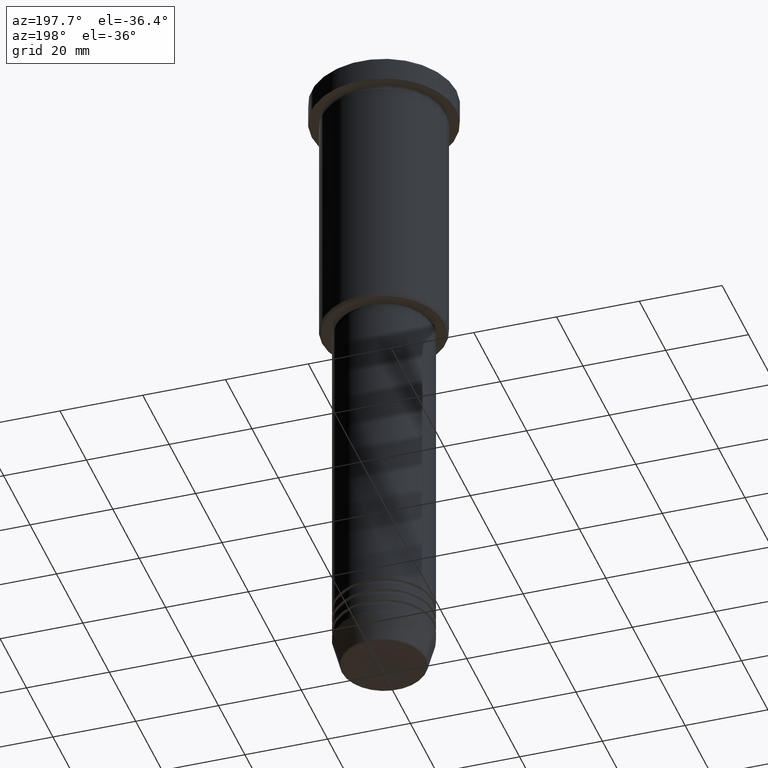
[diagram: clean part render]
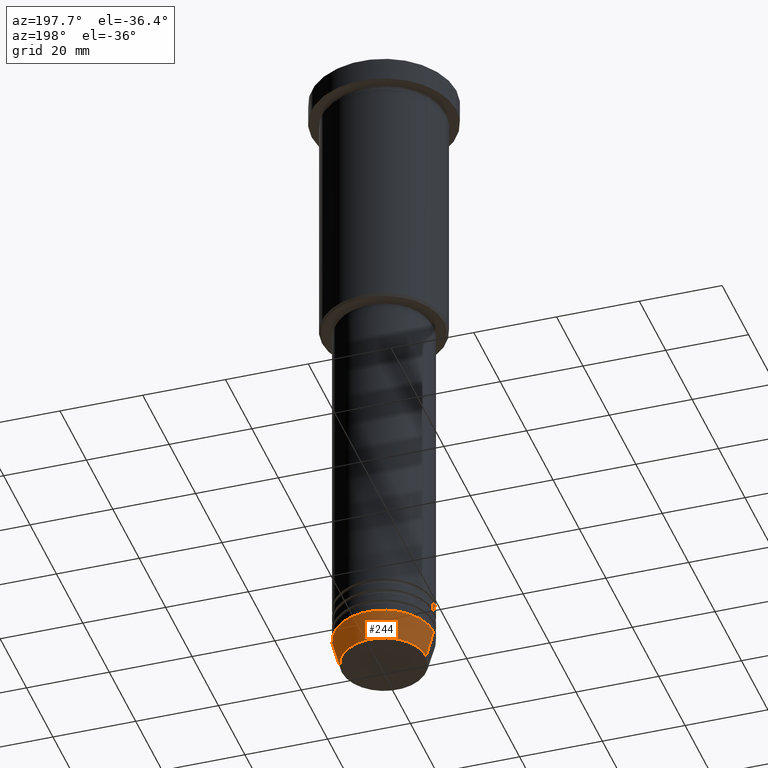
[diagram: same view with one face highlighted and labeled with its STEP entity id]
A machine part, auxiliary view. The second image highlights one B-rep face of the part: STEP entity #244.
In plain terms, the highlighted conical surface has half-angle 15 deg.
Its self-contained STEP definition (entity closure, byte-faithful):
#6 = AXIS2_PLACEMENT_3D ( 'NONE', #682, #656, #220 ) ;
#22 = DIRECTION ( 'NONE',  ( 1.000000000000000000, 0.000000000000000000, 0.000000000000000000 ) ) ;
#60 = AXIS2_PLACEMENT_3D ( 'NONE', #166, #267, #447 ) ;
#102 = AXIS2_PLACEMENT_3D ( 'NONE', #396, #562, #22 ) ;
#132 = VERTEX_POINT ( 'NONE', #814 ) ;
#166 = CARTESIAN_POINT ( 'NONE',  ( 0.000000000000000000, 0.000000000000000000, -154.0000000000000000 ) ) ;
#220 = DIRECTION ( 'NONE',  ( 1.000000000000000000, 0.000000000000000000, 0.000000000000000000 ) ) ;
#244 = ADVANCED_FACE ( 'NONE', ( #307 ), #486, .T. ) ;
#267 = DIRECTION ( 'NONE',  ( -0.000000000000000000, -0.000000000000000000, 1.000000000000000000 ) ) ;
#298 = ORIENTED_EDGE ( 'NONE', *, *, #528, .F. ) ;
#307 = FACE_OUTER_BOUND ( 'NONE', #990, .T. ) ;
#387 = LINE ( 'NONE', #1123, #871 ) ;
#396 = CARTESIAN_POINT ( 'NONE',  ( 0.000000000000000000, 0.000000000000000000, -160.6294095225512422 ) ) ;
#405 = ORIENTED_EDGE ( 'NONE', *, *, #585, .T. ) ;
#447 = DIRECTION ( 'NONE',  ( 1.000000000000000000, 0.000000000000000000, 0.000000000000000000 ) ) ;
#472 = CIRCLE ( 'NONE', #102, 10.22365507213719660 ) ;
#486 = CONICAL_SURFACE ( 'NONE', #6, 12.00000000000000000, 0.2617993877991500740 ) ;
#514 = VERTEX_POINT ( 'NONE', #550 ) ;
#528 = EDGE_CURVE ( 'NONE', #1072, #1158, #1100, .T. ) ;
#550 = CARTESIAN_POINT ( 'NONE',  ( -10.22365507213719837, 1.360806402472383336E-15, -160.6294095225512422 ) ) ;
#562 = DIRECTION ( 'NONE',  ( -0.000000000000000000, -0.000000000000000000, 1.000000000000000000 ) ) ;
#585 = EDGE_CURVE ( 'NONE', #514, #1158, #1128, .T. ) ;
#601 = ORIENTED_EDGE ( 'NONE', *, *, #653, .T. ) ;
#645 = CARTESIAN_POINT ( 'NONE',  ( -12.00000000000000000, 1.469576158976823947E-15, -154.0000000000000000 ) ) ;
#653 = EDGE_CURVE ( 'NONE', #132, #514, #472, .T. ) ;
#656 = DIRECTION ( 'NONE',  ( -0.000000000000000000, -0.000000000000000000, 1.000000000000000000 ) ) ;
#665 = CARTESIAN_POINT ( 'NONE',  ( 12.00000000000000000, 0.000000000000000000, -154.0000000000000000 ) ) ;
#671 = DIRECTION ( 'NONE',  ( -0.2588190451025213501, 3.169619151431772337E-17, 0.9659258262890680902 ) ) ;
#678 = DIRECTION ( 'NONE',  ( 0.2588190451025213501, 0.000000000000000000, 0.9659258262890680902 ) ) ;
#682 = CARTESIAN_POINT ( 'NONE',  ( 0.000000000000000000, 0.000000000000000000, -154.0000000000000000 ) ) ;
#696 = EDGE_CURVE ( 'NONE', #132, #1072, #387, .T. ) ;
#814 = CARTESIAN_POINT ( 'NONE',  ( 10.22365507213719660, 0.000000000000000000, -160.6294095225512422 ) ) ;
#835 = VECTOR ( 'NONE', #671, 1000.000000000000000 ) ;
#871 = VECTOR ( 'NONE', #678, 1000.000000000000000 ) ;
#945 = CARTESIAN_POINT ( 'NONE',  ( -12.00000000000000000, 1.469576158976823947E-15, -154.0000000000000000 ) ) ;
#990 = EDGE_LOOP ( 'NONE', ( #601, #405, #298, #1032 ) ) ;
#1032 = ORIENTED_EDGE ( 'NONE', *, *, #696, .F. ) ;
#1072 = VERTEX_POINT ( 'NONE', #665 ) ;
#1100 = CIRCLE ( 'NONE', #60, 12.00000000000000000 ) ;
#1123 = CARTESIAN_POINT ( 'NONE',  ( 12.00000000000000000, 0.000000000000000000, -154.0000000000000000 ) ) ;
#1128 = LINE ( 'NONE', #945, #835 ) ;
#1158 = VERTEX_POINT ( 'NONE', #645 ) ;